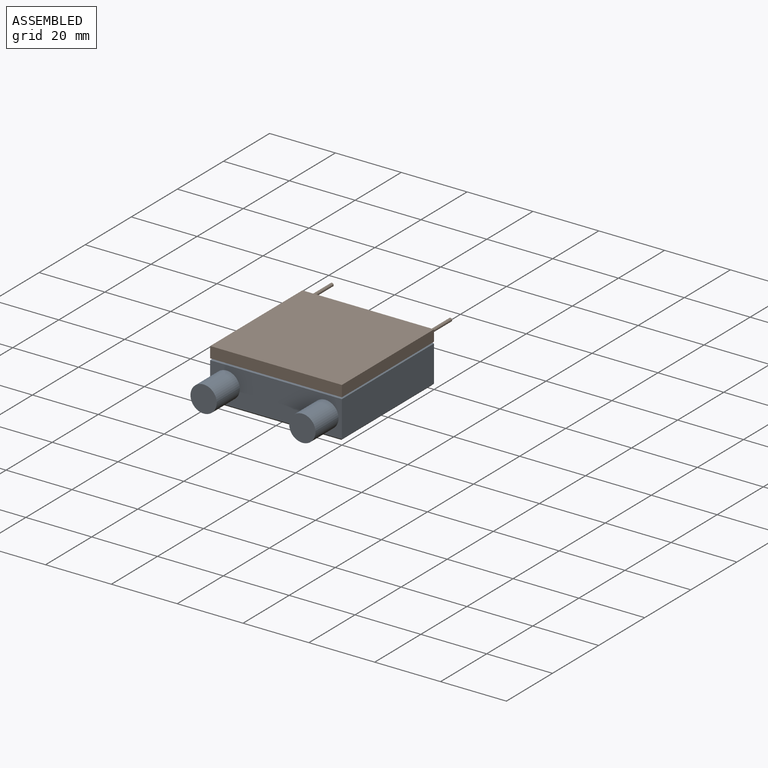
[diagram: assembled view]
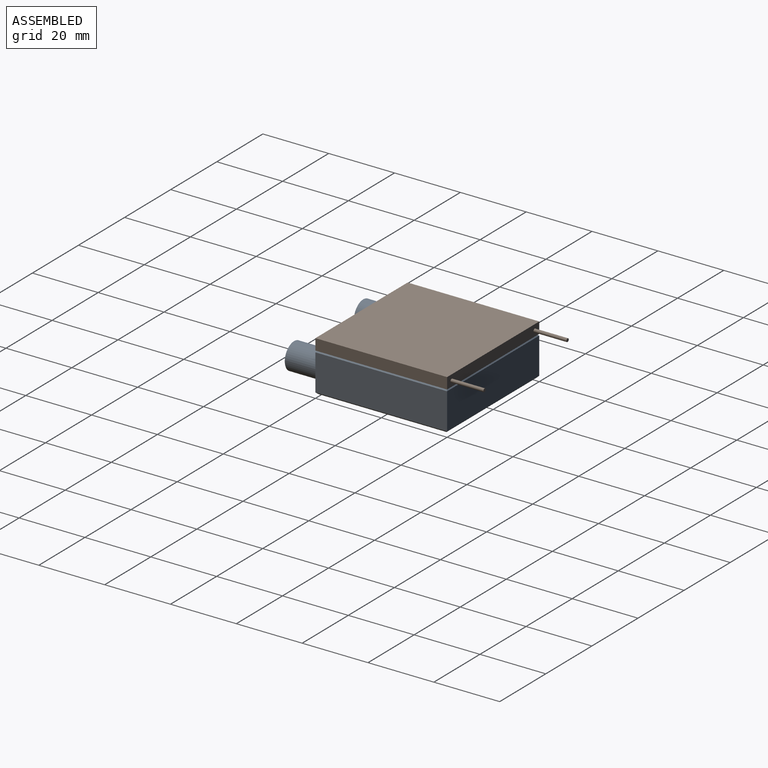
[diagram: assembled view, second angle]
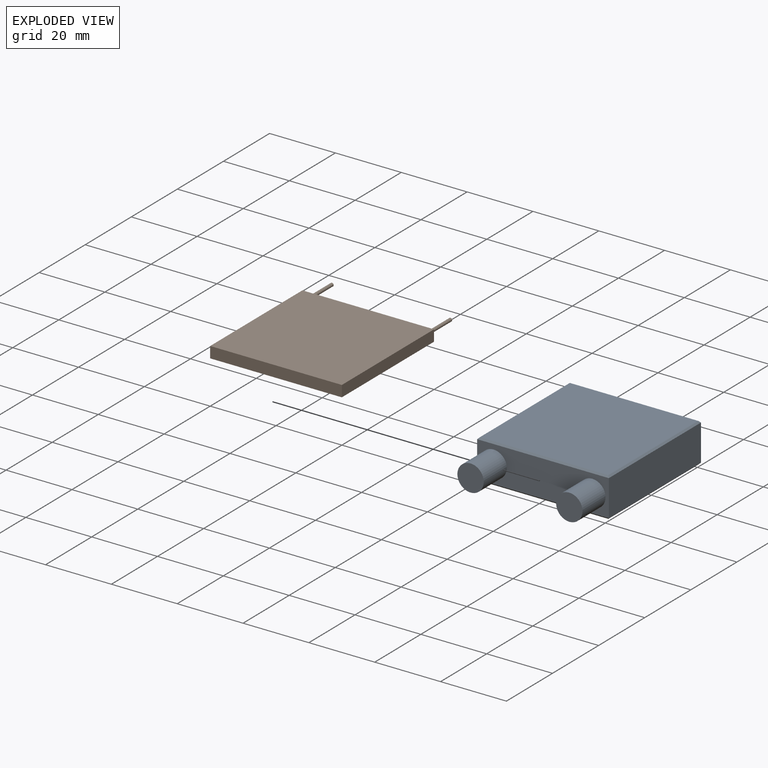
[diagram: exploded view]
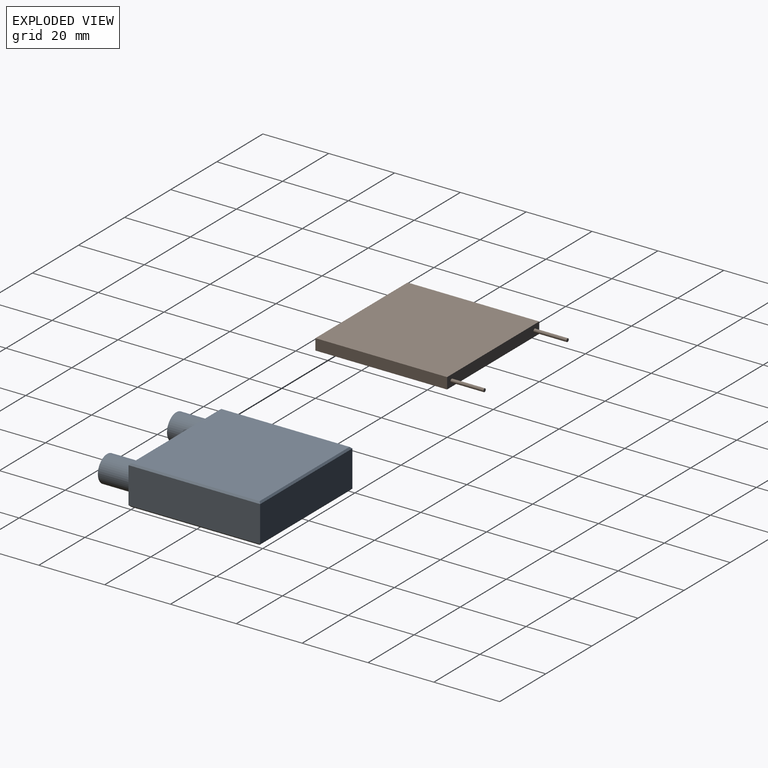
[diagram: exploded view, second angle]
ASSEMBLY  parts=2 mates=3
PART A: 18 faces, bbox 40x50x12 mm
  f0: plane 40x11mm, normal (0,1,0), area 440mm2, adj f1,f3,f13,f17
  f1: plane 40x11mm, normal (-1,0,0), area 440mm2, adj f0,f2,f11,f15
  f2: plane 40x11mm, normal (0,-1,0), area 339.5mm2, adj f1,f3,f6,f8,f10,f14
  f3: plane 40x11mm, normal (1,0,0), area 440mm2, adj f0,f2,f12,f16
  f4: plane 39x39mm, normal (0,0,1), area 1521mm2, adj f14,f15,f16,f17
  f5: plane 39x39mm, normal (0,0,-1), area 1521mm2, adj f10,f11,f12,f13
  f6: cylinder r=4mm len=10mm, axis (0,1,0), area 251.3mm2, adj f2,f7
  f7: plane 8x8mm, normal (0,-1,0), area 50.3mm2, adj f6
  f8: cylinder r=4mm len=10mm, axis (0,1,0), area 251.3mm2, adj f2,f9
  f9: plane 8x8mm, normal (0,-1,0), area 50.3mm2, adj f8
  f10: plane 40x0.5mm, normal (0,-0.71,-0.71), area 27.9mm2, adj f2,f5,f11,f12
  f11: plane 40x0.5mm, normal (-0.71,0,-0.71), area 27.9mm2, adj f1,f5,f10,f13
  f12: plane 40x0.5mm, normal (0.71,0,-0.71), area 27.9mm2, adj f3,f5,f10,f13
  f13: plane 40x0.5mm, normal (0,0.71,-0.71), area 27.9mm2, adj f0,f5,f11,f12
  f14: plane 40x0.5mm, normal (0,-0.71,0.71), area 27.9mm2, adj f2,f4,f15,f16
  f15: plane 40x0.5mm, normal (-0.71,0,0.71), area 27.9mm2, adj f1,f4,f14,f17
  f16: plane 40x0.5mm, normal (0.71,0,0.71), area 27.9mm2, adj f3,f4,f14,f17
  f17: plane 40x0.5mm, normal (0,0.71,0.71), area 27.9mm2, adj f0,f4,f15,f16
PART B: 10 faces, bbox 40x50x3.4 mm
  f0: plane 40x3.4mm, normal (0,1,0), area 136mm2, adj f1,f3,f4,f5
  f1: plane 40x3.4mm, normal (-1,0,0), area 136mm2, adj f0,f2,f4,f5
  f2: plane 40x3.4mm, normal (0,-1,0), area 134.4mm2, adj f1,f3,f4,f5,f6,f8
  f3: plane 40x3.4mm, normal (1,0,0), area 136mm2, adj f0,f2,f4,f5
  f4: plane 40x40mm, normal (0,0,1), area 1600mm2, adj f0,f1,f2,f3
  f5: plane 40x40mm, normal (0,0,-1), area 1600mm2, adj f0,f1,f2,f3
  f6: cylinder r=0.5mm len=10mm, axis (0,1,0), area 31.4mm2, adj f2,f7
  f7: plane 1x1mm, normal (0,-1,0), area 0.8mm2, adj f6
  f8: cylinder r=0.5mm len=10mm, axis (0,1,0), area 31.4mm2, adj f2,f9
  f9: plane 1x1mm, normal (0,-1,0), area 0.8mm2, adj f8
PLACE A t=(0,20,-15.4)mm
PLACE B rot(axis=(0,0,1),180deg) t=(0,20,-3.4)mm
MATE planar A.f3 <-> B.f1  axis (1,0,0) through (20,20,-9.4)mm
MATE planar B.f5 <-> A.f4  axis (0,0,-1) through (0,20,-3.4)mm
MATE planar B.f6 <-> A.f0  axis (0,1,0) through (18,40,-1.7)mm
